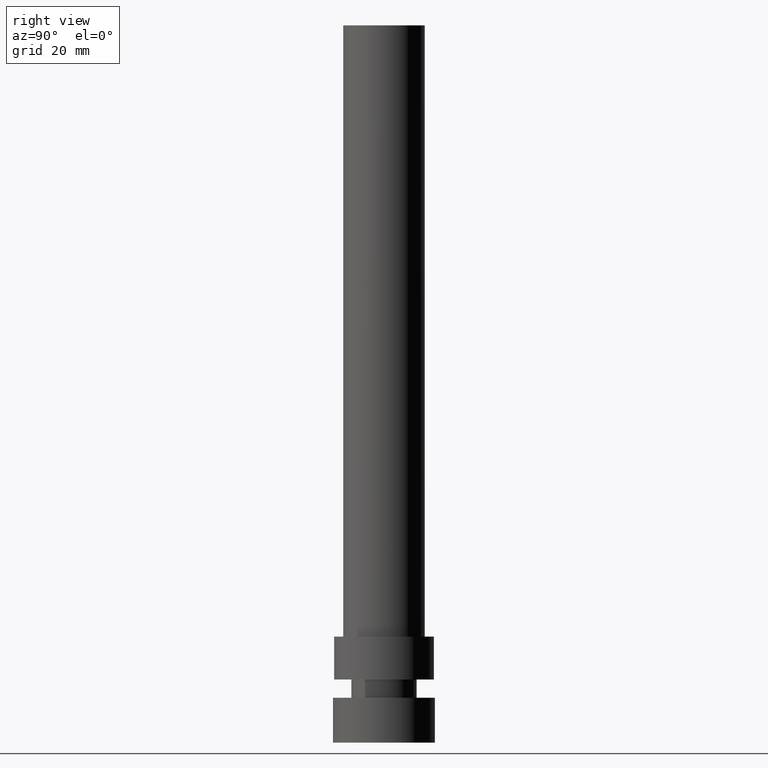
[diagram: clean part render]
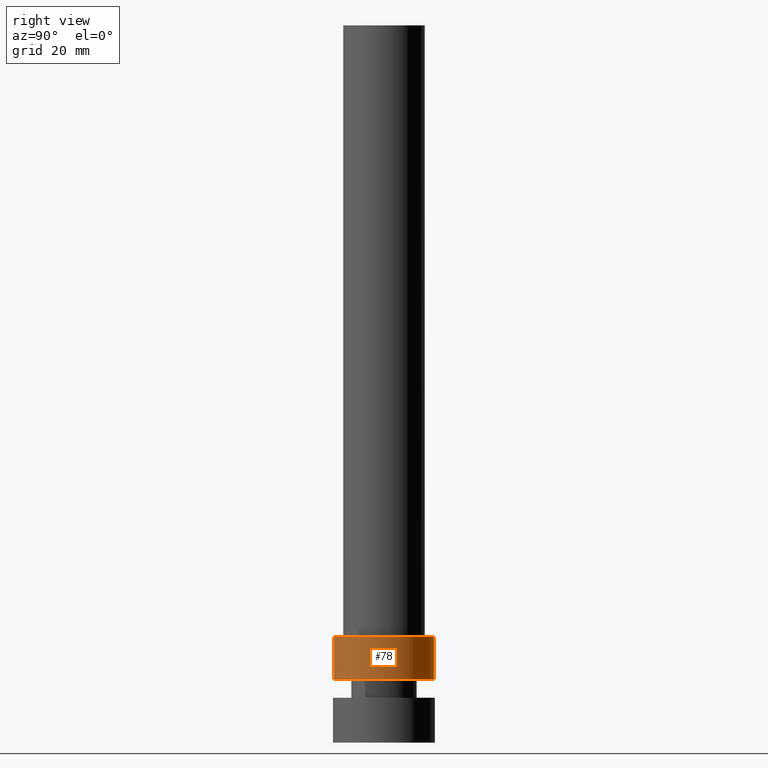
[diagram: same view with one face highlighted and labeled with its STEP entity id]
A machine part, right view. The second image highlights one B-rep face of the part: STEP entity #78.
In plain terms, the highlighted cylindrical surface (bore or boss wall) has radius 12.25 mm, axis along (-0, -0, 1).
Its self-contained STEP definition (entity closure, byte-faithful):
#78=ADVANCED_FACE('',(#93,#94),#95,.T.);
#93=FACE_BOUND('',#118,.T.);
#94=FACE_BOUND('',#119,.T.);
#95=CYLINDRICAL_SURFACE('',#120,12.25);
#118=EDGE_LOOP('',(#149));
#119=EDGE_LOOP('',(#150));
#120=AXIS2_PLACEMENT_3D('',#151,#152,#153);
#149=ORIENTED_EDGE('',*,*,#181,.F.);
#150=ORIENTED_EDGE('',*,*,#180,.T.);
#151=CARTESIAN_POINT('',(-1.27057105411538E-015,-2.54114210823076E-015,20.75));
#152=DIRECTION('',(-6.12323399573677E-017,-1.22464679914735E-016,1.0));
#153=DIRECTION('',(-1.23259516440783E-032,1.0,1.22464679914735E-016));
#180=EDGE_CURVE('',#190,#190,#191,.T.);
#181=EDGE_CURVE('',#192,#192,#193,.T.);
#190=VERTEX_POINT('',#206);
#191=CIRCLE('',#207,12.25);
#192=VERTEX_POINT('',#208);
#193=CIRCLE('',#209,12.25);
#206=CARTESIAN_POINT('',(-1.59204083889156E-015,12.25,26.0));
#207=AXIS2_PLACEMENT_3D('',#224,#225,#226);
#208=CARTESIAN_POINT('',(-9.49101269339199E-016,12.25,15.5));
#209=AXIS2_PLACEMENT_3D('',#227,#228,#229);
#224=CARTESIAN_POINT('',(-1.59204083889156E-015,-3.18408167778312E-015,26.0));
#225=DIRECTION('',(6.12323399573677E-017,1.22464679914735E-016,-1.0));
#226=DIRECTION('',(-1.23259516440783E-032,1.0,1.22464679914735E-016));
#227=CARTESIAN_POINT('',(-9.49101269339199E-016,-1.89820253867839E-015,15.5));
#228=DIRECTION('',(6.12323399573677E-017,1.22464679914735E-016,-1.0));
#229=DIRECTION('',(-1.23259516440783E-032,1.0,1.22464679914735E-016));